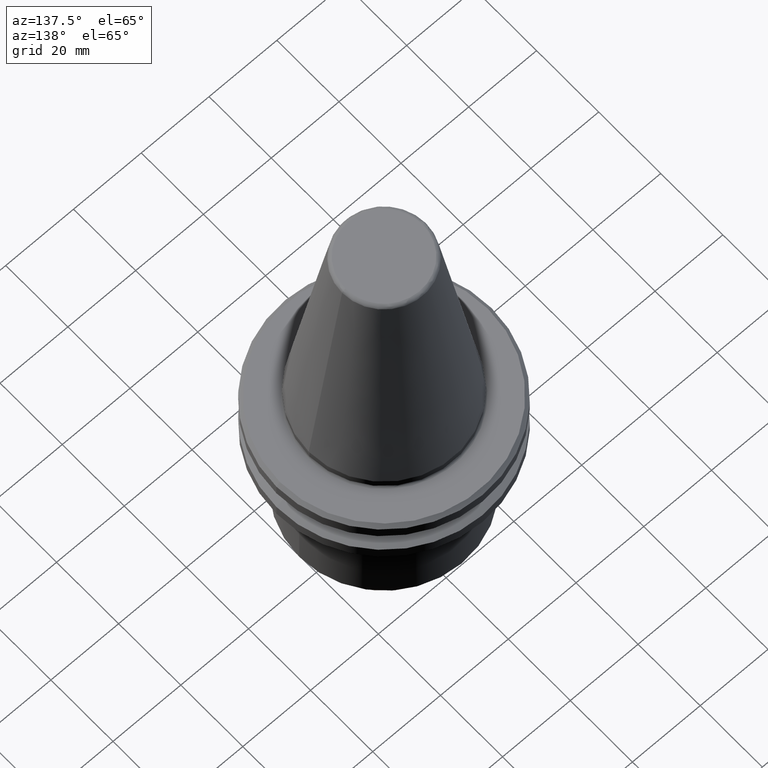
[diagram: clean part render]
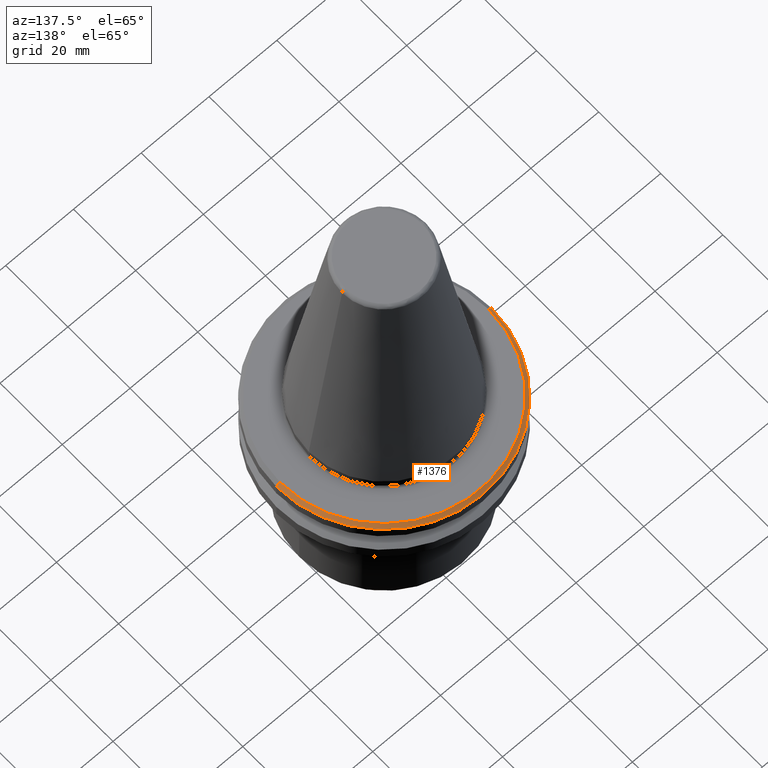
[diagram: same view with one face highlighted and labeled with its STEP entity id]
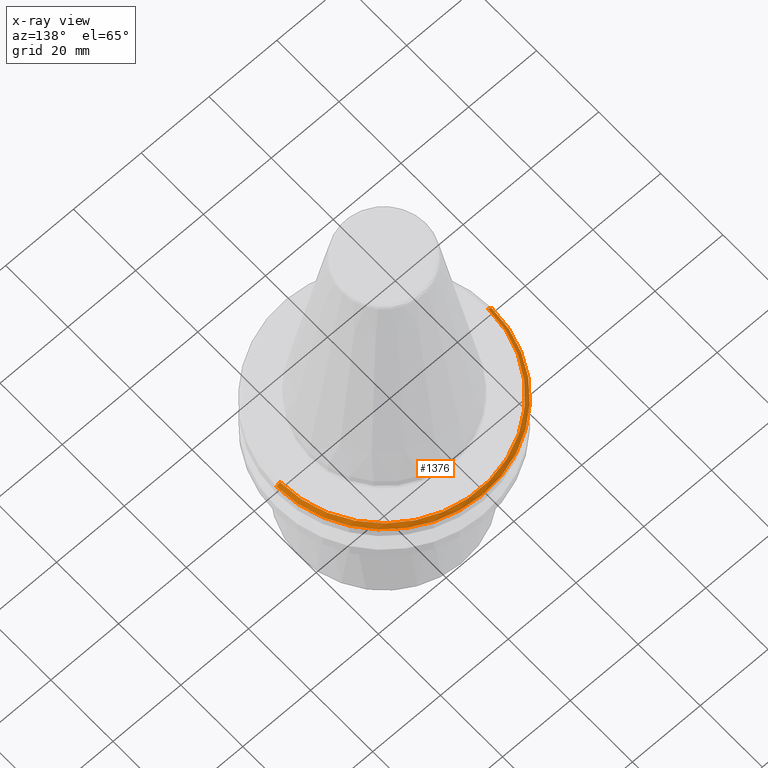
[diagram: x-ray of the same camera — body ghosted, the highlighted face saturated]
A machine part, auxiliary view. The second image highlights one B-rep face of the part: STEP entity #1376.
The next image is the same camera in x-ray: the body ghosted, the highlighted face saturated — about 0% of this face is hidden behind the body in this view.
In plain terms, the highlighted conical surface has half-angle 45 deg.
Its self-contained STEP definition (entity closure, byte-faithful):
#97 = VERTEX_POINT ( 'NONE', #1081 ) ;
#102 = FACE_OUTER_BOUND ( 'NONE', #1289, .T. ) ;
#178 = DIRECTION ( 'NONE',  ( -1.000000000000000000, 0.0000000000000000000, 0.0000000000000000000 ) ) ;
#193 = DIRECTION ( 'NONE',  ( -0.7071067811865408000, 0.0000000000000000000, -0.7071067811865543500 ) ) ;
#208 = VERTEX_POINT ( 'NONE', #996 ) ;
#301 = ORIENTED_EDGE ( 'NONE', *, *, #1454, .F. ) ;
#303 = EDGE_CURVE ( 'NONE', #585, #97, #1331, .T. ) ;
#394 = VERTEX_POINT ( 'NONE', #574 ) ;
#403 = EDGE_CURVE ( 'NONE', #208, #394, #1381, .T. ) ;
#484 = CARTESIAN_POINT ( 'NONE',  ( 31.63284271247462300, 3.873905957576372200E-015, -4.082842712474625400 ) ) ;
#487 = DIRECTION ( 'NONE',  ( 0.7071067811865408000, 8.659560562354850300E-017, -0.7071067811865543500 ) ) ;
#561 = LINE ( 'NONE', #682, #873 ) ;
#574 = CARTESIAN_POINT ( 'NONE',  ( 31.74999999999983300, 0.0000000000000000000, -4.199999999999926500 ) ) ;
#585 = VERTEX_POINT ( 'NONE', #1249 ) ;
#672 = CARTESIAN_POINT ( 'NONE',  ( 0.0000000000000000000, 0.0000000000000000000, -4.082842712474625400 ) ) ;
#682 = CARTESIAN_POINT ( 'NONE',  ( -31.63284271247462300, 0.0000000000000000000, -4.082842712474625400 ) ) ;
#700 = DIRECTION ( 'NONE',  ( -1.000000000000000000, 0.0000000000000000000, 0.0000000000000000000 ) ) ;
#703 = EDGE_CURVE ( 'NONE', #97, #394, #857, .T. ) ;
#738 = AXIS2_PLACEMENT_3D ( 'NONE', #1168, #1515, #700 ) ;
#752 = DIRECTION ( 'NONE',  ( -0.0000000000000000000, -0.0000000000000000000, -1.000000000000000000 ) ) ;
#816 = DIRECTION ( 'NONE',  ( -1.000000000000000000, 0.0000000000000000000, 0.0000000000000000000 ) ) ;
#857 = LINE ( 'NONE', #484, #1401 ) ;
#873 = VECTOR ( 'NONE', #193, 1000.000000000000100 ) ;
#967 = ORIENTED_EDGE ( 'NONE', *, *, #303, .T. ) ;
#973 = AXIS2_PLACEMENT_3D ( 'NONE', #1422, #752, #816 ) ;
#996 = CARTESIAN_POINT ( 'NONE',  ( -31.74999999999983300, 3.888253587292836200E-015, -4.199999999999926500 ) ) ;
#1081 = CARTESIAN_POINT ( 'NONE',  ( 30.74999999999994300, 3.827021247335470200E-015, -3.200000000000036100 ) ) ;
#1102 = ORIENTED_EDGE ( 'NONE', *, *, #403, .F. ) ;
#1136 = CONICAL_SURFACE ( 'NONE', #1142, 31.63284271247462300, 0.7853981633974387300 ) ;
#1142 = AXIS2_PLACEMENT_3D ( 'NONE', #672, #1350, #178 ) ;
#1168 = CARTESIAN_POINT ( 'NONE',  ( 0.0000000000000000000, 0.0000000000000000000, -3.200000000000036100 ) ) ;
#1170 = ORIENTED_EDGE ( 'NONE', *, *, #703, .T. ) ;
#1249 = CARTESIAN_POINT ( 'NONE',  ( -30.74999999999994300, 0.0000000000000000000, -3.200000000000036100 ) ) ;
#1289 = EDGE_LOOP ( 'NONE', ( #967, #1170, #1102, #301 ) ) ;
#1331 = CIRCLE ( 'NONE', #738, 30.74999999999994300 ) ;
#1350 = DIRECTION ( 'NONE',  ( 0.0000000000000000000, 0.0000000000000000000, -1.000000000000000000 ) ) ;
#1376 = ADVANCED_FACE ( 'NONE', ( #102 ), #1136, .T. ) ;
#1381 = CIRCLE ( 'NONE', #973, 31.74999999999983300 ) ;
#1401 = VECTOR ( 'NONE', #487, 1000.000000000000100 ) ;
#1422 = CARTESIAN_POINT ( 'NONE',  ( 0.0000000000000000000, 0.0000000000000000000, -4.199999999999926500 ) ) ;
#1454 = EDGE_CURVE ( 'NONE', #585, #208, #561, .T. ) ;
#1515 = DIRECTION ( 'NONE',  ( -0.0000000000000000000, -0.0000000000000000000, -1.000000000000000000 ) ) ;